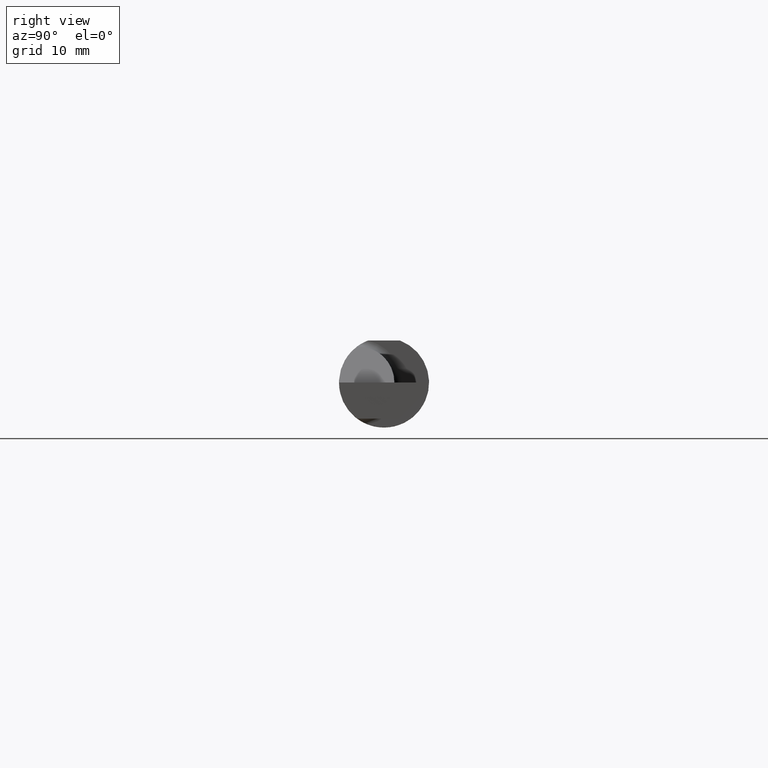
[diagram: clean part render]
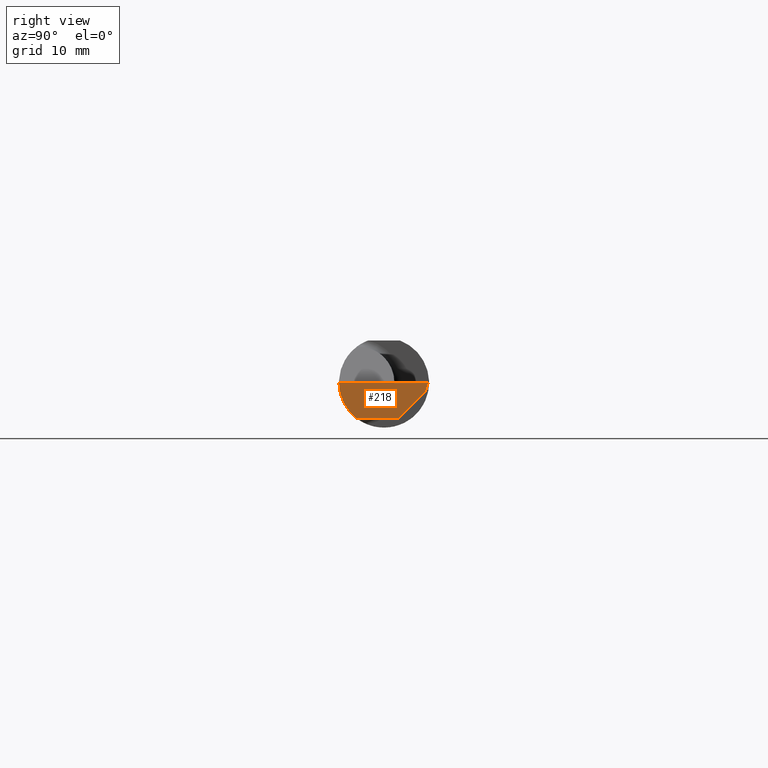
[diagram: same view with one face highlighted and labeled with its STEP entity id]
A machine part, right view. The second image highlights one B-rep face of the part: STEP entity #218.
In plain terms, the highlighted planar face has unit normal (-0.9995, 0.0174, 0.0262).
Its self-contained STEP definition (entity closure, byte-faithful):
#36 = CARTESIAN_POINT ( 'NONE',  ( 2.500000000000000000, 0.1539000000000000090, 0.000000000000000000 ) ) ;
#43 = DIRECTION ( 'NONE',  ( -0.9995050723230146650, 0.01744642593347468448, 0.02617694830787320806 ) ) ;
#51 = CARTESIAN_POINT ( 'NONE',  ( 2.500000000000000000, 0.1539000000000000090, 0.000000000000000000 ) ) ;
#105 = ORIENTED_EDGE ( 'NONE', *, *, #901, .F. ) ;
#121 = DIRECTION ( 'NONE',  ( -0.01745240643727716257, -0.9998476951563912696, 1.869448656733061176E-16 ) ) ;
#177 = EDGE_LOOP ( 'NONE', ( #665, #886, #626, #962, #498, #105 ) ) ;
#179 = EDGE_CURVE ( 'NONE', #307, #333, #1010, .T. ) ;
#210 = LINE ( 'NONE', #395, #708 ) ;
#218 = ADVANCED_FACE ( 'NONE', ( #256 ), #813, .F. ) ;
#256 = FACE_OUTER_BOUND ( 'NONE', #177, .T. ) ;
#262 = EDGE_CURVE ( 'NONE', #554, #880, #419, .T. ) ;
#304 = CARTESIAN_POINT ( 'NONE',  ( 2.492408115719126460, -0.09360841750841747411, -0.1249186702281520206 ) ) ;
#307 = VERTEX_POINT ( 'NONE', #36 ) ;
#314 = CARTESIAN_POINT ( 'NONE',  ( 2.499001794690755673, 0.1432258439880203515, -0.03099999999999999978 ) ) ;
#319 = CARTESIAN_POINT ( 'NONE',  ( 2.498907590953288960, 0.1410674343035965006, -0.03315840968442382991 ) ) ;
#331 = LINE ( 'NONE', #319, #430 ) ;
#333 = VERTEX_POINT ( 'NONE', #314 ) ;
#365 = LINE ( 'NONE', #773, #618 ) ;
#395 = CARTESIAN_POINT ( 'NONE',  ( 2.495673289801201733, 0.09357530910345747410, -0.1250000000000000278 ) ) ;
#396 = EDGE_CURVE ( 'NONE', #333, #718, #331, .T. ) ;
#419 =( BOUNDED_CURVE ( )  B_SPLINE_CURVE ( 3, ( #304, #545, #714, #568 ),
 .UNSPECIFIED., .F., .T. ) 
 B_SPLINE_CURVE_WITH_KNOTS ( ( 4, 4 ),
 ( 0.5517985523994612951, 0.5878737167659243701 ),
 .UNSPECIFIED. ) 
 CURVE ( )  GEOMETRIC_REPRESENTATION_ITEM ( )  RATIONAL_B_SPLINE_CURVE ( ( 1.000000000000000000, 0.9998915514833921492, 0.9998915514833921492, 1.000000000000000000 ) ) 
 REPRESENTATION_ITEM ( '' )  );
#430 = VECTOR ( 'NONE', #574, 39.37007874015748854 ) ;
#470 = CARTESIAN_POINT ( 'NONE',  ( 2.494588929872255001, -0.1561000000000000443, 0.000000000000000000 ) ) ;
#498 = ORIENTED_EDGE ( 'NONE', *, *, #634, .T. ) ;
#527 =( BOUNDED_CURVE ( )  B_SPLINE_CURVE ( 3, ( #889, #1063, #814, #563 ),
 .UNSPECIFIED., .F., .F. ) 
 B_SPLINE_CURVE_WITH_KNOTS ( ( 4, 4 ),
 ( 0.05521439950980804034, 0.9829226100289724100 ),
 .UNSPECIFIED. ) 
 CURVE ( )  GEOMETRIC_REPRESENTATION_ITEM ( )  RATIONAL_B_SPLINE_CURVE ( ( 1.000000000000000000, 0.9295565493311498395, 0.9295565493311498395, 1.000000000000000000 ) ) 
 REPRESENTATION_ITEM ( '' )  );
#532 = CARTESIAN_POINT ( 'NONE',  ( 2.499907390804593899, 0.1529096977137292535, -0.002876046671974680051 ) ) ;
#545 = CARTESIAN_POINT ( 'NONE',  ( 2.492432917398131220, -0.09210618219364773152, -0.1249728871357007887 ) ) ;
#554 = VERTEX_POINT ( 'NONE', #591 ) ;
#563 = CARTESIAN_POINT ( 'NONE',  ( 2.494588929872255001, -0.1561000000000000443, 0.000000000000000000 ) ) ;
#568 = CARTESIAN_POINT ( 'NONE',  ( 2.492484680420020027, -0.08910000000000001252, -0.1250000000000000000 ) ) ;
#574 = DIRECTION ( 'NONE',  ( -0.03084697155452407330, -0.7067702824630920366, -0.7067702824630894831 ) ) ;
#591 = CARTESIAN_POINT ( 'NONE',  ( 2.492408115719126460, -0.09360841750841747411, -0.1249186702281520206 ) ) ;
#618 = VECTOR ( 'NONE', #856, 39.37007874015748143 ) ;
#624 = CARTESIAN_POINT ( 'NONE',  ( 2.492484680420020027, -0.08910000000000001252, -0.1250000000000000000 ) ) ;
#626 = ORIENTED_EDGE ( 'NONE', *, *, #396, .F. ) ;
#634 = EDGE_CURVE ( 'NONE', #307, #874, #365, .T. ) ;
#665 = ORIENTED_EDGE ( 'NONE', *, *, #262, .T. ) ;
#679 = AXIS2_PLACEMENT_3D ( 'NONE', #51, #43, #1073 ) ;
#708 = VECTOR ( 'NONE', #121, 39.37007874015748143 ) ;
#714 = CARTESIAN_POINT ( 'NONE',  ( 2.492458441733171881, -0.09060321336276837279, -0.1250000000000000278 ) ) ;
#718 = VERTEX_POINT ( 'NONE', #719 ) ;
#719 = CARTESIAN_POINT ( 'NONE',  ( 2.494899167008080454, 0.04922584398801997663, -0.1250000000000000278 ) ) ;
#754 = EDGE_CURVE ( 'NONE', #718, #880, #210, .T. ) ;
#770 = VECTOR ( 'NONE', #871, 39.37007874015748854 ) ;
#773 = CARTESIAN_POINT ( 'NONE',  ( 2.500000000000000000, 0.1539000000000000090, 0.000000000000000000 ) ) ;
#813 = PLANE ( 'NONE',  #679 ) ;
#814 = CARTESIAN_POINT ( 'NONE',  ( 2.493277140361873201, -0.1561000000000000165, -0.05008759057876776416 ) ) ;
#856 = DIRECTION ( 'NONE',  ( -0.01745240643727716603, -0.9998476951563912696, 0.000000000000000000 ) ) ;
#871 = DIRECTION ( 'NONE',  ( -0.03043175897092292859, -0.3254173665140246419, -0.9450806556146477133 ) ) ;
#874 = VERTEX_POINT ( 'NONE', #470 ) ;
#880 = VERTEX_POINT ( 'NONE', #624 ) ;
#886 = ORIENTED_EDGE ( 'NONE', *, *, #754, .F. ) ;
#889 = CARTESIAN_POINT ( 'NONE',  ( 2.492408115719126460, -0.09360841750841747411, -0.1249186702281520206 ) ) ;
#901 = EDGE_CURVE ( 'NONE', #554, #874, #527, .T. ) ;
#962 = ORIENTED_EDGE ( 'NONE', *, *, #179, .F. ) ;
#1010 = LINE ( 'NONE', #532, #770 ) ;
#1063 = CARTESIAN_POINT ( 'NONE',  ( 2.492495113650786021, -0.1336908980339254205, -0.09488266708345007017 ) ) ;
#1073 = DIRECTION ( 'NONE',  ( 0.02618093305822682959, 0.000000000000000000, 0.9996572206232497981 ) ) ;